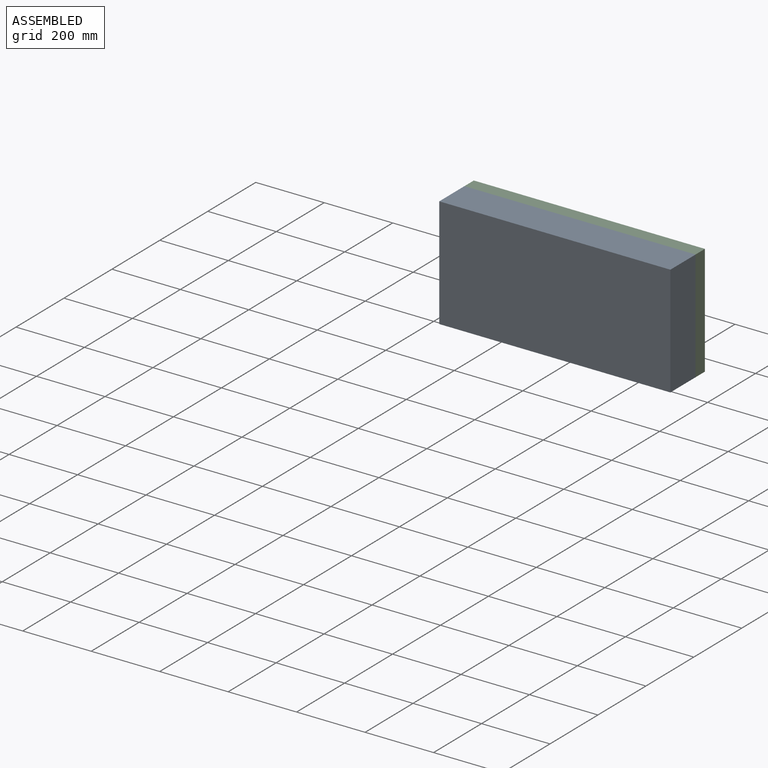
[diagram: assembled view]
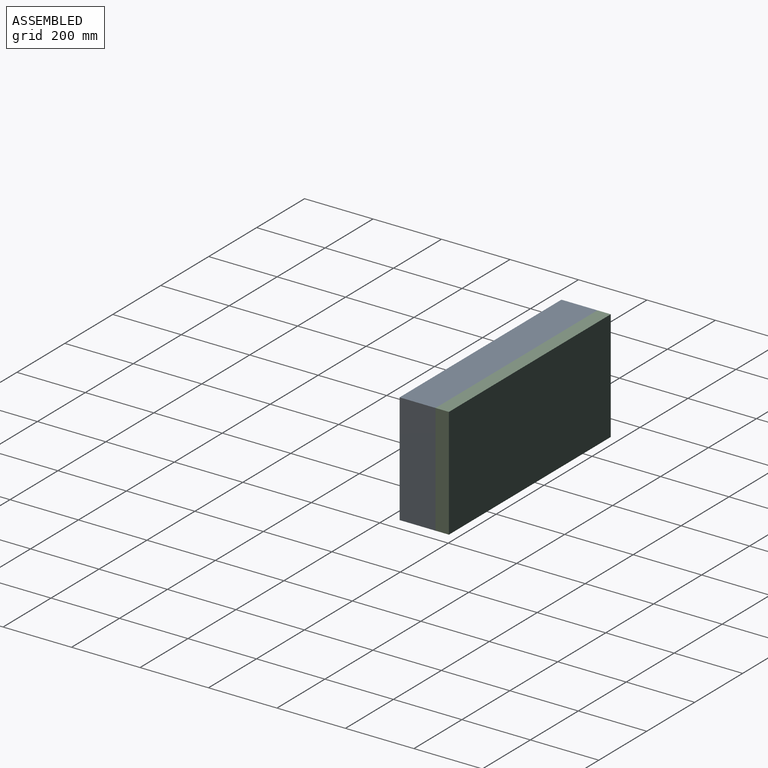
[diagram: assembled view, second angle]
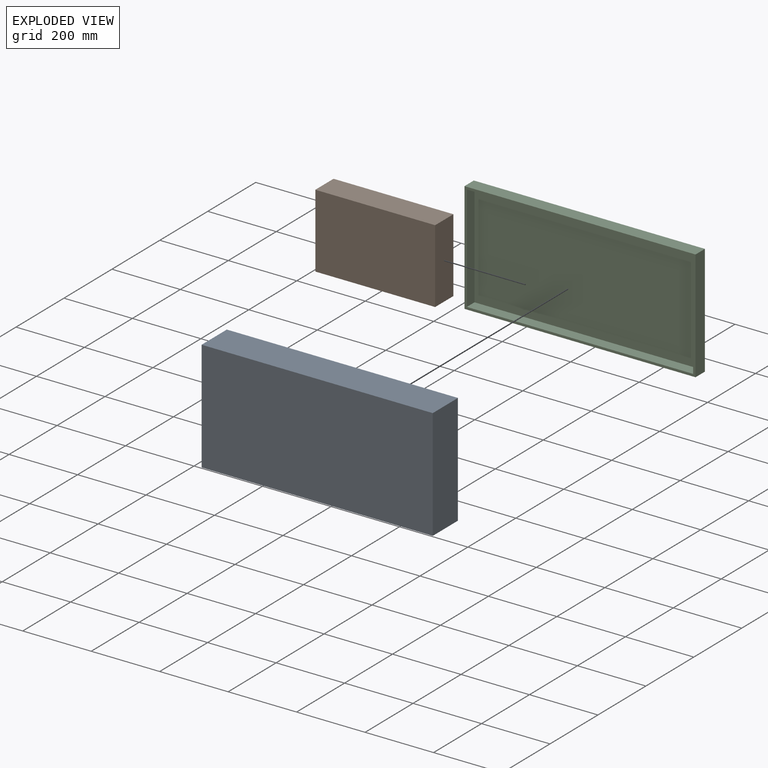
[diagram: exploded view]
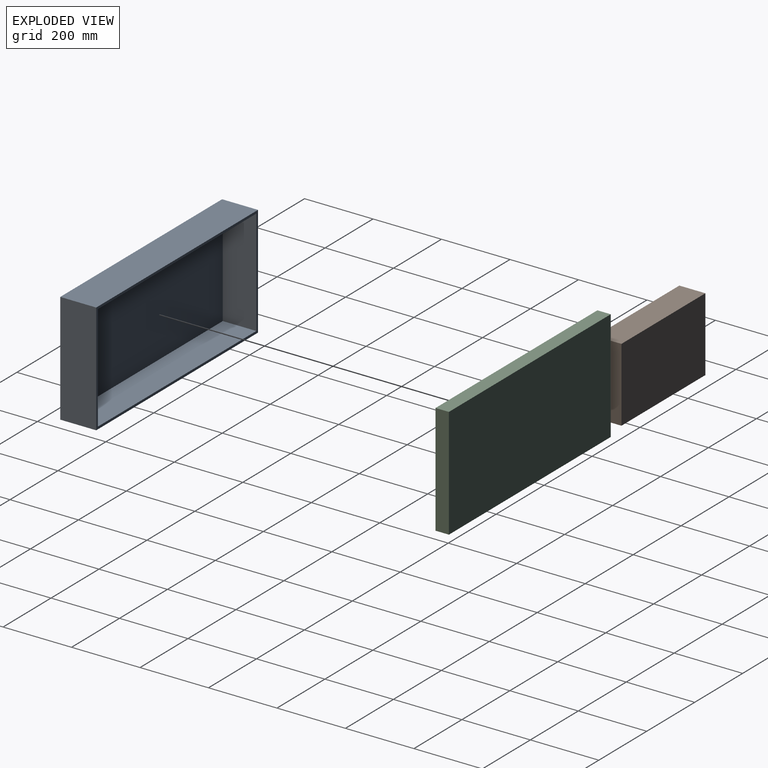
[diagram: exploded view, second angle]
ASSEMBLY  parts=3 mates=4
PART A: 11 faces, bbox 675x105x324 mm
  f0: plane 675x324mm, normal (0,-1,0), area 13790mm2, adj f1,f2,f3,f4,f6,f7,f8,f9
  f1: plane 675x105mm, normal (0,0,-1), area 70875mm2, adj f0,f2,f4,f5
  f2: plane 324x105mm, normal (1,0,0), area 34020mm2, adj f0,f1,f3,f5
  f3: plane 675x105mm, normal (0,0,1), area 70875mm2, adj f0,f2,f4,f5
  f4: plane 324x105mm, normal (-1,0,0), area 34020mm2, adj f0,f1,f3,f5
  f5: plane 675x324mm, normal (0,1,0), area 218700mm2, adj f1,f2,f3,f4
  f6: plane 661x98mm, normal (0,0,1), area 64778mm2, adj f0,f7,f9,f10
  f7: plane 310x98mm, normal (-1,0,0), area 30380mm2, adj f0,f6,f8,f10
  f8: plane 661x98mm, normal (0,0,-1), area 64778mm2, adj f0,f7,f9,f10
  f9: plane 310x98mm, normal (1,0,0), area 30380mm2, adj f0,f6,f8,f10
  f10: plane 661x310mm, normal (0,-1,0), area 204910mm2, adj f6,f7,f8,f9
PART B: 6 faces, bbox 350x76x216 mm
  f0: plane 350x76mm, normal (0,0,-1), area 26600mm2, adj f1,f3,f4,f5
  f1: plane 216x76mm, normal (1,0,0), area 16416mm2, adj f0,f2,f4,f5
  f2: plane 350x76mm, normal (0,0,1), area 26600mm2, adj f1,f3,f4,f5
  f3: plane 216x76mm, normal (-1,0,0), area 16416mm2, adj f0,f2,f4,f5
  f4: plane 350x216mm, normal (0,1,0), area 75600mm2, adj f0,f1,f2,f3
  f5: plane 350x216mm, normal (0,-1,0), area 75600mm2, adj f0,f1,f2,f3
PART C: 11 faces, bbox 675x39x324 mm
  f0: plane 675x324mm, normal (0,-1,0), area 13790mm2, adj f1,f2,f3,f4,f6,f7,f8,f9
  f1: plane 675x39mm, normal (0,0,-1), area 26325mm2, adj f0,f2,f4,f5
  f2: plane 324x39mm, normal (1,0,0), area 12636mm2, adj f0,f1,f3,f5
  f3: plane 675x39mm, normal (0,0,1), area 26325mm2, adj f0,f2,f4,f5
  f4: plane 324x39mm, normal (-1,0,0), area 12636mm2, adj f0,f1,f3,f5
  f5: plane 675x324mm, normal (0,1,0), area 218700mm2, adj f1,f2,f3,f4
  f6: plane 661x32mm, normal (0,0,1), area 21152mm2, adj f0,f7,f9,f10
  f7: plane 310x32mm, normal (-1,0,0), area 9920mm2, adj f0,f6,f8,f10
  f8: plane 661x32mm, normal (0,0,-1), area 21152mm2, adj f0,f7,f9,f10
  f9: plane 310x32mm, normal (1,0,0), area 9920mm2, adj f0,f6,f8,f10
  f10: plane 661x310mm, normal (0,-1,0), area 204910mm2, adj f6,f7,f8,f9
PLACE A rot(axis=(1,0,0),180deg) t=(-127.64,-149.93,-8.78)mm
PLACE B rot(axis=(1,0,0),180deg) t=(-283.14,-117.93,-55.78)mm
PLACE C t=(-127.64,-149.93,-8.78)mm
MATE planar B.f2 <-> C.f6  axis (0,0,-1) through (-283.14,-155.93,-163.78)mm
MATE planar B.f3 <-> C.f9  axis (-1,0,0) through (-458.14,-155.93,-55.78)mm
MATE planar A.f0 <-> C.f0  axis (0,1,0) through (-127.64,-149.93,-8.78)mm
MATE planar B.f5 <-> C.f10  axis (0,1,0) through (-283.14,-117.93,-55.78)mm
